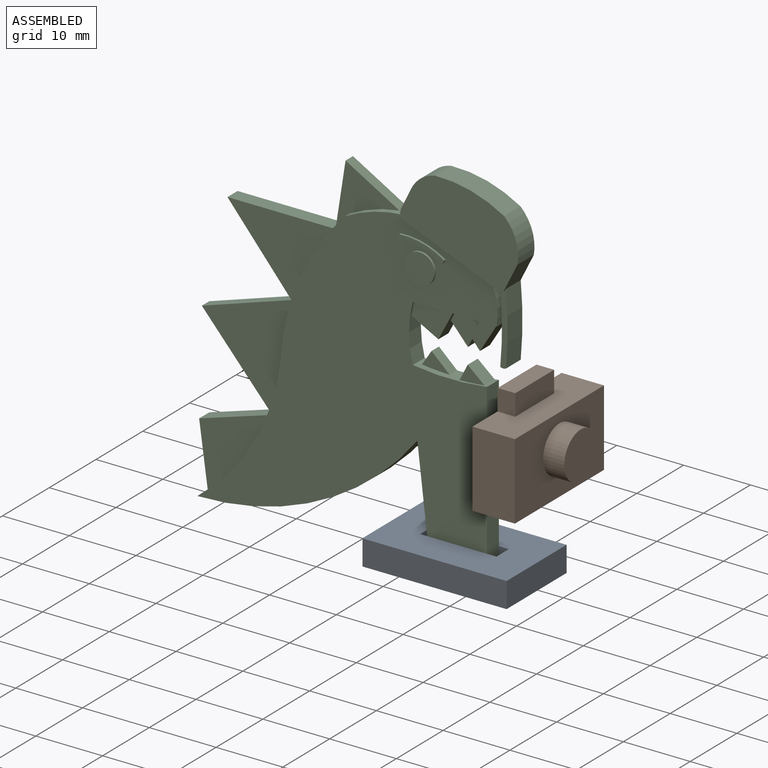
[diagram: assembled view]
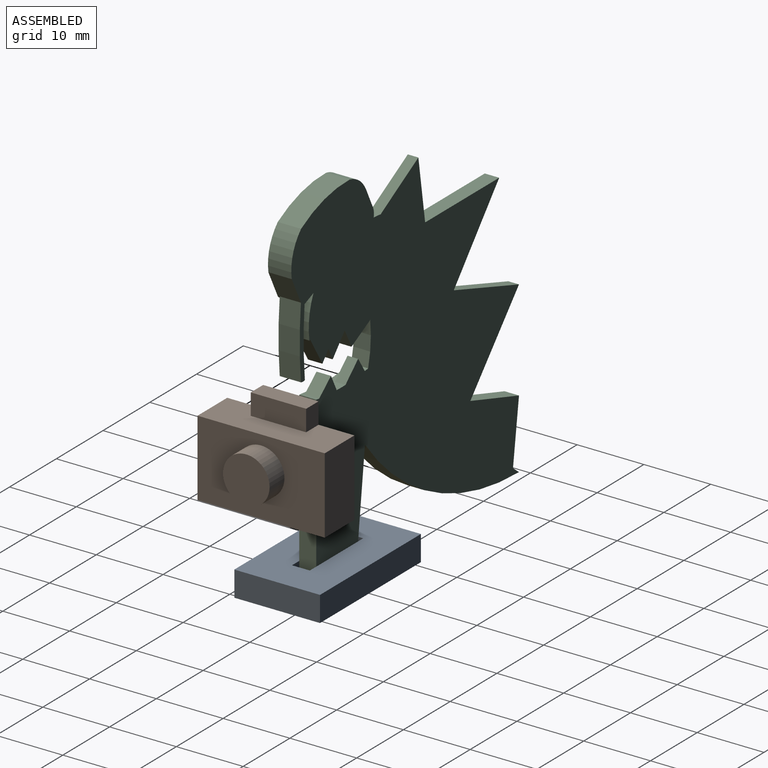
[diagram: assembled view, second angle]
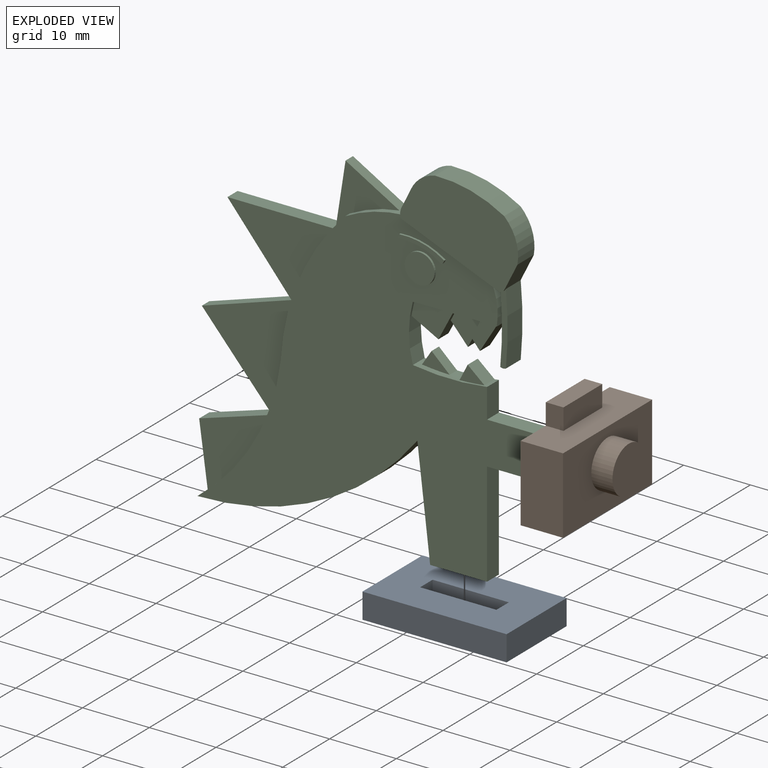
[diagram: exploded view]
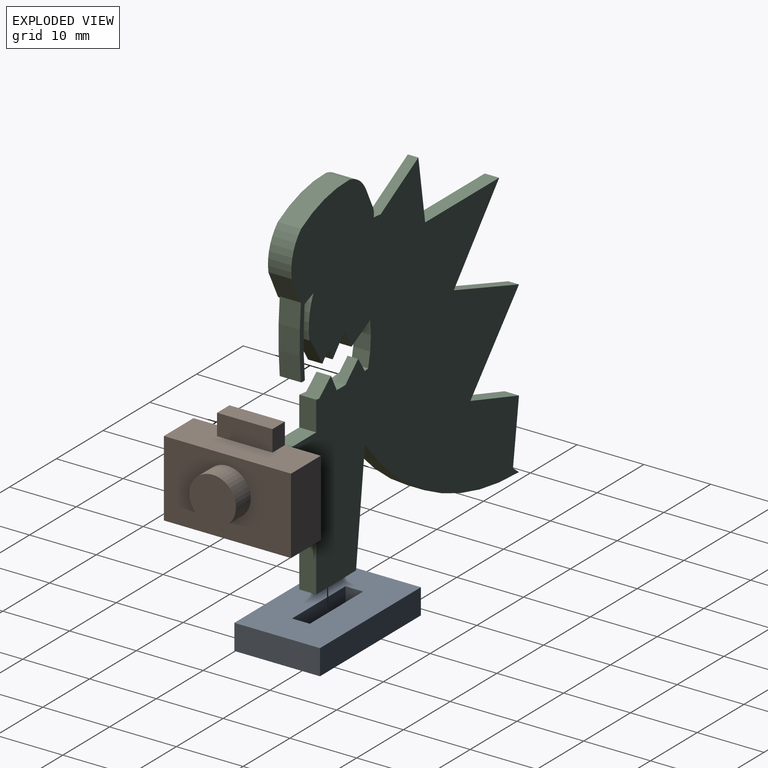
[diagram: exploded view, second angle]
ASSEMBLY  parts=3 mates=2
PART A: 10 faces, bbox 21.6x12.8x3.8 mm
  f0: plane 12.83x3.81mm, normal (-1,0,0), area 48.9mm2, adj f1,f7,f8,f9
  f1: plane 21.59x3.81mm, normal (0,-1,0), area 82.3mm2, adj f0,f2,f8,f9
  f2: plane 12.83x3.81mm, normal (1,0,0), area 48.9mm2, adj f1,f7,f8,f9
  f3: plane 3.81x2.67mm, normal (1,0,0), area 10.2mm2, adj f4,f6,f8,f9
  f4: plane 11.43x3.81mm, normal (0,-1,0), area 43.5mm2, adj f3,f5,f8,f9
  f5: plane 3.81x2.67mm, normal (-1,0,0), area 10.2mm2, adj f4,f6,f8,f9
  f6: plane 11.43x3.81mm, normal (0,1,0), area 43.5mm2, adj f3,f5,f8,f9
  f7: plane 21.59x3.81mm, normal (0,1,0), area 82.3mm2, adj f0,f2,f8,f9
  f8: plane 21.59x12.83mm, normal (0,0,1), area 246.5mm2, adj f0,f1,f2,f3,f4,f5,f6,f7
  f9: plane 21.59x12.83mm, normal (0,0,-1), area 246.5mm2, adj f0,f1,f2,f3,f4,f5,f6,f7
PART B: 17 faces, bbox 19.1x14.6x9.5 mm
  f0: plane 19.05x14.61mm, normal (0,0,-1), area 222.8mm2, adj f1,f2,f3,f4,f9,f10,f11,f12
  f1: plane 19.05x6.35mm, normal (0,-1,0), area 121mm2, adj f0,f2,f4,f5
  f2: plane 11.43x6.35mm, normal (1,0,0), area 72.6mm2, adj f0,f1,f3,f5
  f3: plane 19.05x6.35mm, normal (0,1,0), area 99mm2, adj f0,f2,f4,f5,f8,f9,f10
  f4: plane 11.43x6.35mm, normal (-1,0,0), area 72.6mm2, adj f0,f1,f3,f5
  f5: plane 19.05x11.43mm, normal (0,0,1), area 179.4mm2, adj f1,f2,f3,f4,f6
  f6: cylinder r=3.49mm len=6.99mm, axis (0,0,-1), area 69.7mm2, adj f5,f7
  f7: plane 6.99x6.99mm, normal (0,0,1), area 38.3mm2, adj f6
  f8: plane 8.3x3.18mm, normal (0,0,1), area 26.3mm2, adj f3,f9,f10,f11
  f9: plane 3.18x2.65mm, normal (1,0,0), area 8.4mm2, adj f0,f3,f8,f11
  f10: plane 3.18x2.65mm, normal (-1,0,0), area 8.4mm2, adj f0,f3,f8,f11
  f11: plane 8.3x2.65mm, normal (0,1,0), area 22mm2, adj f0,f8,f9,f10
  f12: plane 7.62x3.81mm, normal (-1,0,0), area 29mm2, adj f0,f13,f15,f16
  f13: plane 3.81x2.79mm, normal (0,1,0), area 10.6mm2, adj f0,f12,f14,f16
  f14: plane 7.62x3.81mm, normal (1,0,0), area 29mm2, adj f0,f13,f15,f16
  f15: plane 3.81x2.79mm, normal (0,-1,0), area 10.6mm2, adj f0,f12,f14,f16
  f16: plane 7.62x2.79mm, normal (0,0,-1), area 21.3mm2, adj f12,f13,f14,f15
PART C: 65 faces, bbox 50.8x53.4x3.5 mm
  f0: plane 4.32x2.27mm, normal (0.89,-0.46,0), area 7.7mm2, adj f12,f13,f48,f49,f60,f61
  f1: cylinder r=20.58mm len=8.93mm, axis (0,0,-1), area 11.3mm2, adj f2,f3,f12,f26,f57,f58
  f2: cylinder r=34.36mm len=22.05mm, axis (0,0,-1), area 15.9mm2, adj f1,f15,f26,f41,f42,f43,f55,f58
  f3: cylinder r=2.37mm len=3.49mm, axis (0,0,-1), area 6.5mm2, adj f1,f4,f10,f11,f12,f26
  f4: plane 14.78x6.02mm, normal (-0.38,-0.93,0), area 20.4mm2, adj f3,f5,f11,f12,f14,f26,f27
  f5: cylinder r=0.9mm len=0.78mm, axis (0,0,-1), area 0.3mm2, adj f4,f6,f11,f30
  f6: plane 3.94x3.49mm, normal (0.89,-0.45,0), area 15.4mm2, adj f5,f7,f11,f12,f29
  f7: cylinder r=6.82mm len=6.04mm, axis (0,0,-1), area 23.1mm2, adj f6,f8,f11,f12
  f8: cylinder r=19.05mm len=10.37mm, axis (0,0,-1), area 37.9mm2, adj f7,f9,f11,f12
  f9: cylinder r=4.99mm len=3.55mm, axis (0,0,-1), area 16.2mm2, adj f8,f10,f11,f12
  f10: plane 3.49x2.64mm, normal (-0.9,0.44,0), area 10.3mm2, adj f3,f9,f11,f12
  f11: plane 17.68x13.19mm, normal (0,0,1), area 154.8mm2, adj f3,f4,f5,f6,f7,f8,f9,f10
  f12: plane 53.44x50.8mm, normal (0,0,-1), area 1662.9mm2, adj f0,f1,f3,f4,f6,f7,f8,f9
  f13: cylinder r=397.29mm len=12.57mm, axis (0,0,-1), area 7.6mm2, adj f0,f12,f14,f25,f26,f44,f45,f47
  f14: cylinder r=10.14mm len=6.11mm, axis (0,0,-1), area 15.9mm2, adj f4,f12,f13,f26
  f15: cylinder r=31.99mm len=21.76mm, axis (0,0,-1), area 18.2mm2, adj f2,f12,f16,f26,f38,f39,f40,f55
  f16: cylinder r=41.46mm len=32.95mm, axis (0,0,-1), area 96.7mm2, adj f12,f15,f17,f26
  f17: plane 16.29x2.54mm, normal (-0.99,-0.12,0), area 41.7mm2, adj f12,f16,f18,f26
  f18: plane 8.52x2.54mm, normal (0,-1,0), area 21.6mm2, adj f12,f17,f19,f26
  f19: plane 15.59x2.54mm, normal (1,0,0), area 39.6mm2, adj f12,f18,f20,f26
  f20: plane 7.42x2.54mm, normal (0,-1,0), area 18.9mm2, adj f12,f19,f21,f26
  f21: plane 6.35x2.54mm, normal (1,0,0), area 16.1mm2, adj f12,f20,f22,f26
  f22: plane 7.42x2.54mm, normal (0,1,0), area 18.9mm2, adj f12,f21,f23,f26
  f23: plane 4.42x2.54mm, normal (1,0,0), area 11.2mm2, adj f12,f22,f24,f26
  f24: cylinder r=39.1mm len=11.11mm, axis (0,0,-1), area 13.6mm2, adj f12,f23,f25,f26,f50,f51,f52,f62
  f25: cylinder r=16.15mm len=8.56mm, axis (0,0,-1), area 17.2mm2, adj f12,f13,f24,f26,f48,f49
  f26: plane 50.8x46.32mm, normal (0,0,1), area 1143.9mm2, adj f1,f2,f3,f4,f13,f14,f15,f16
  f27: cylinder r=56.88mm len=10.29mm, axis (0,0,-1), area 32.7mm2, adj f4,f12,f28,f30
  f28: cylinder r=1.09mm len=3.18mm, axis (0,0,-1), area 2.7mm2, adj f12,f27,f29,f30
  f29: cylinder r=54.9mm len=10.78mm, axis (0,0,-1), area 34.3mm2, adj f6,f12,f28,f30
  f30: plane 10.87x1.11mm, normal (0,0,1), area 8.8mm2, adj f5,f27,f28,f29
  f31: plane 4.46x4.46mm, normal (0,0,1), area 15.6mm2, adj f32
  f32: cylinder r=2.23mm len=4.46mm, axis (0,0,-1), area 4.5mm2, adj f26,f31
  f33: plane 6.9x2.42mm, normal (0,0,1), area 4.6mm2, adj f34,f35,f36,f37
  f34: cylinder r=0.68mm len=0.63mm, axis (0,0,-1), area 0.2mm2, adj f26,f33,f35,f37
  f35: cylinder r=10.62mm len=6.75mm, axis (0,0,-1), area 2.3mm2, adj f26,f33,f34,f36
  f36: cylinder r=0.98mm len=0.63mm, axis (0,0,-1), area 0.2mm2, adj f26,f33,f35,f37
  f37: cylinder r=9.19mm len=6.45mm, axis (0,0,-1), area 2.2mm2, adj f26,f33,f34,f36
  f38: plane 9.34x2.16mm, normal (-0.99,-0.14,0), area 20.4mm2, adj f12,f15,f39,f40
  f39: plane 10.41x3.24mm, normal (-0.3,0.95,0), area 23.5mm2, adj f12,f15,f38,f40,f54
  f40: plane 12.58x10.41mm, normal (0,0,1), area 60.6mm2, adj f15,f38,f39
  f41: plane 11.53x9.71mm, normal (-0.76,-0.64,0), area 32.6mm2, adj f2,f12,f42,f43,f53
  f42: plane 15.84x2.16mm, normal (0,1,0), area 34.2mm2, adj f2,f12,f41,f43,f56
  f43: plane 15.84x11.53mm, normal (0,0,1), area 85.9mm2, adj f2,f41,f42
  f44: plane 4.2x2.57mm, normal (0.85,-0.52,0), area 10.6mm2, adj f12,f13,f46,f47
  f45: plane 2.72x1.43mm, normal (-0.89,0.46,0), area 1.8mm2, adj f13,f46,f47,f61
  f46: plane 2.16x1.51mm, normal (-0.76,-0.65,0), area 4.3mm2, adj f12,f44,f45,f47,f59
  f47: plane 4.23x3.85mm, normal (0,0,1), area 7.9mm2, adj f13,f44,f45,f46
  f48: plane 4x2.16mm, normal (-0.46,-0.89,0), area 9.8mm2, adj f0,f12,f25,f49
  f49: plane 6.27x4.32mm, normal (0,0,1), area 17.4mm2, adj f0,f13,f25,f48
  f50: plane 2.4x2.16mm, normal (-0.89,0.45,0), area 5.8mm2, adj f12,f24,f51,f52
  f51: plane 2.51x2.16mm, normal (0.64,0.77,0), area 7.1mm2, adj f12,f24,f50,f52
  f52: plane 3.73x2.4mm, normal (0,0,1), area 4.4mm2, adj f24,f50,f51
  f53: plane 13.95x4.53mm, normal (-0.31,0.95,0), area 23.3mm2, adj f12,f41,f54,f55
  f54: plane 11.8x10.41mm, normal (-0.75,-0.66,0), area 25mm2, adj f12,f39,f53,f55
  f55: plane 16.33x13.95mm, normal (0,0,1), area 108.7mm2, adj f2,f15,f53,f54
  f56: plane 9.34x1.59mm, normal (-0.99,0.15,0), area 15mm2, adj f12,f42,f57,f58
  f57: plane 8.06x4.6mm, normal (0.5,0.87,0), area 14.7mm2, adj f1,f12,f56,f58
  f58: plane 9.51x9.34mm, normal (0,0,1), area 32.7mm2, adj f1,f2,f56,f57
  f59: plane 1.76x1.59mm, normal (0.89,-0.46,0), area 3.2mm2, adj f12,f46,f60,f61
  f60: plane 2.92x2.58mm, normal (-0.75,-0.66,0), area 6.2mm2, adj f0,f12,f59,f61
  f61: plane 4.93x4.49mm, normal (0,0,1), area 12.5mm2, adj f0,f13,f45,f59,f60
  f62: plane 2.21x1.59mm, normal (-0.84,0.55,0), area 4.2mm2, adj f12,f24,f63,f64
  f63: plane 2.71x2.5mm, normal (0.68,0.73,0), area 5.9mm2, adj f12,f24,f62,f64
  f64: plane 4.15x2.5mm, normal (0,0,1), area 4.9mm2, adj f24,f62,f63
PLACE A t=(18.69,-9.26,-12.4)mm
PLACE B rot(axis=(0.58,0.58,0.58),120deg) t=(26.56,-9.26,7)mm
PLACE C rot(axis=(1,0,0),90deg) t=(4.97,-7.99,13)mm
MATE fastened B.f16 <-> C.f21  axis (-1,0,0) through (30.37,-9.26,3.19)mm
MATE fastened A.f9 <-> C.f18  axis (0,0,-1) through (18.69,-9.26,-12.4)mm
